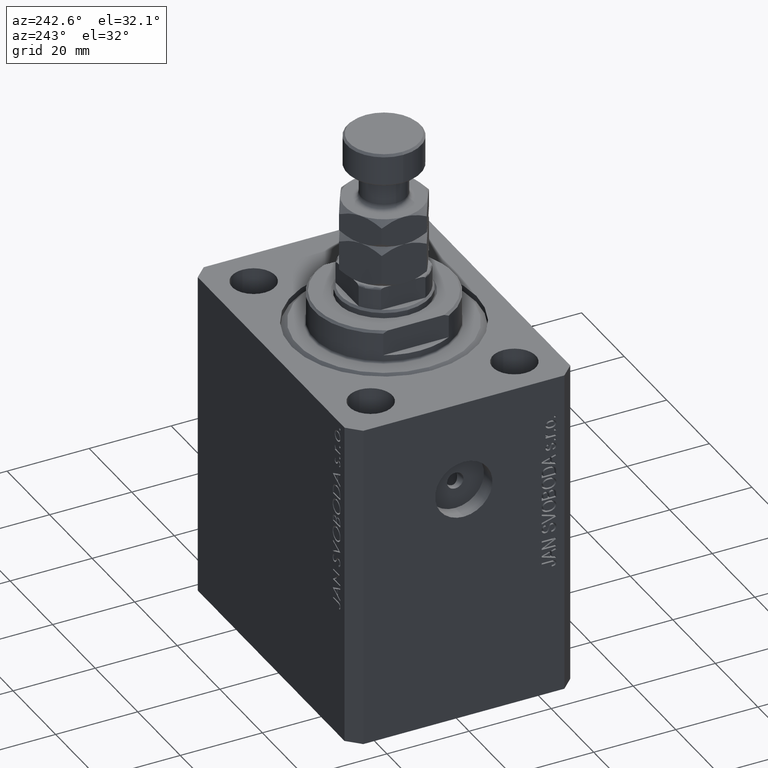
[diagram: clean part render]
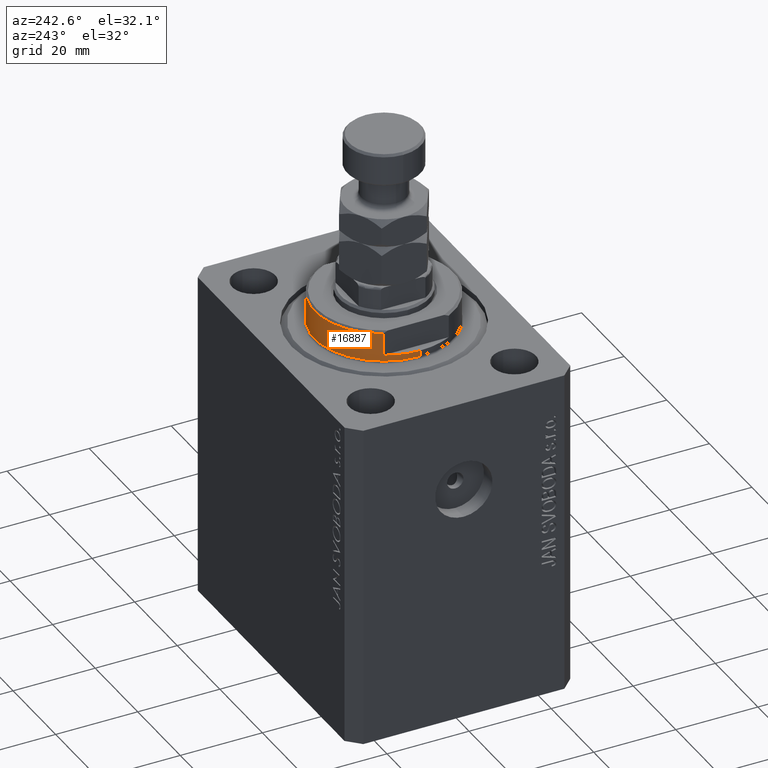
[diagram: same view with one face highlighted and labeled with its STEP entity id]
A machine part, auxiliary view. The second image highlights one B-rep face of the part: STEP entity #16887.
In plain terms, the highlighted cylindrical surface (partial cylindrical patch) has radius 17 mm, axis along (0, 0, -1).
Its self-contained STEP definition (entity closure, byte-faithful):
#897 = VERTEX_POINT ( 'NONE', #15271 ) ;
#2296 = CARTESIAN_POINT ( 'NONE',  ( 15.00000000000000000, 8.000000000000001776, -7.500000000000007105 ) ) ;
#4079 = CARTESIAN_POINT ( 'NONE',  ( -17.00000000000000000, 2.081899558550500280E-15, -2.000000000000000000 ) ) ;
#4300 = EDGE_CURVE ( 'NONE', #5283, #37004, #7949, .T. ) ;
#5283 = VERTEX_POINT ( 'NONE', #2296 ) ;
#7949 = LINE ( 'NONE', #11694, #41467 ) ;
#7968 = ORIENTED_EDGE ( 'NONE', *, *, #4300, .F. ) ;
#8120 = CARTESIAN_POINT ( 'NONE',  ( 17.00000000000000000, 0.000000000000000000, -0.5000000000000004441 ) ) ;
#8830 = DIRECTION ( 'NONE',  ( 0.000000000000000000, 0.000000000000000000, -1.000000000000000000 ) ) ;
#9133 = CARTESIAN_POINT ( 'NONE',  ( -17.00000000000000000, 2.081899558550500280E-15, -0.5000000000000004441 ) ) ;
#9137 = AXIS2_PLACEMENT_3D ( 'NONE', #25714, #15855, #39984 ) ;
#10696 = LINE ( 'NONE', #20540, #45595 ) ;
#11595 = DIRECTION ( 'NONE',  ( 1.000000000000000000, 0.000000000000000000, 0.000000000000000000 ) ) ;
#11694 = CARTESIAN_POINT ( 'NONE',  ( 15.00000000000000000, 8.000000000000001776, -8.000000000000000000 ) ) ;
#12828 = DIRECTION ( 'NONE',  ( -0.000000000000000000, -0.000000000000000000, 1.000000000000000000 ) ) ;
#13608 = CIRCLE ( 'NONE', #39764, 17.00000000000000000 ) ;
#13814 = VERTEX_POINT ( 'NONE', #43929 ) ;
#13815 = EDGE_CURVE ( 'NONE', #45988, #28394, #13608, .T. ) ;
#14014 = LINE ( 'NONE', #14235, #27195 ) ;
#14235 = CARTESIAN_POINT ( 'NONE',  ( -17.00000000000000000, 2.081899558550500280E-15, -8.000000000000000000 ) ) ;
#15264 = AXIS2_PLACEMENT_3D ( 'NONE', #39969, #8830, #25932 ) ;
#15271 = CARTESIAN_POINT ( 'NONE',  ( 17.00000000000000000, 0.000000000000000000, -2.000000000000000000 ) ) ;
#15855 = DIRECTION ( 'NONE',  ( 0.000000000000000000, 0.000000000000000000, 1.000000000000000000 ) ) ;
#16582 = EDGE_CURVE ( 'NONE', #897, #28394, #37423, .T. ) ;
#16683 = EDGE_CURVE ( 'NONE', #45934, #13814, #10696, .T. ) ;
#16887 = ADVANCED_FACE ( 'NONE', ( #18862 ), #18094, .T. ) ;
#18021 = DIRECTION ( 'NONE',  ( -0.000000000000000000, -0.000000000000000000, 1.000000000000000000 ) ) ;
#18094 = CYLINDRICAL_SURFACE ( 'NONE', #28398, 17.00000000000000000 ) ;
#18862 = FACE_OUTER_BOUND ( 'NONE', #32482, .T. ) ;
#20540 = CARTESIAN_POINT ( 'NONE',  ( -15.00000000000000000, 8.000000000000001776, -8.000000000000000000 ) ) ;
#21843 = VERTEX_POINT ( 'NONE', #4079 ) ;
#22392 = VECTOR ( 'NONE', #12828, 1000.000000000000000 ) ;
#22607 = CARTESIAN_POINT ( 'NONE',  ( 0.000000000000000000, 0.000000000000000000, -0.5000000000000004441 ) ) ;
#22909 = CIRCLE ( 'NONE', #23656, 17.00000000000000000 ) ;
#23511 = EDGE_CURVE ( 'NONE', #5283, #45934, #45784, .T. ) ;
#23656 = AXIS2_PLACEMENT_3D ( 'NONE', #34732, #45507, #41526 ) ;
#25612 = CARTESIAN_POINT ( 'NONE',  ( 14.99999999999999645, 8.000000000000003553, -2.000000000000000000 ) ) ;
#25714 = CARTESIAN_POINT ( 'NONE',  ( 0.000000000000000000, 0.000000000000000000, -7.500000000000007105 ) ) ;
#25932 = DIRECTION ( 'NONE',  ( -1.000000000000000000, 0.000000000000000000, 0.000000000000000000 ) ) ;
#27195 = VECTOR ( 'NONE', #32276, 1000.000000000000000 ) ;
#27741 = ORIENTED_EDGE ( 'NONE', *, *, #29411, .T. ) ;
#28394 = VERTEX_POINT ( 'NONE', #8120 ) ;
#28398 = AXIS2_PLACEMENT_3D ( 'NONE', #42938, #39634, #39185 ) ;
#29411 = EDGE_CURVE ( 'NONE', #21843, #45988, #14014, .T. ) ;
#30876 = CARTESIAN_POINT ( 'NONE',  ( 17.00000000000000000, 0.000000000000000000, -8.000000000000000000 ) ) ;
#31237 = ORIENTED_EDGE ( 'NONE', *, *, #32127, .F. ) ;
#32025 = DIRECTION ( 'NONE',  ( -0.000000000000000000, -0.000000000000000000, 1.000000000000000000 ) ) ;
#32127 = EDGE_CURVE ( 'NONE', #21843, #13814, #41460, .T. ) ;
#32276 = DIRECTION ( 'NONE',  ( -0.000000000000000000, -0.000000000000000000, 1.000000000000000000 ) ) ;
#32441 = ORIENTED_EDGE ( 'NONE', *, *, #23511, .T. ) ;
#32482 = EDGE_LOOP ( 'NONE', ( #31237, #27741, #43632, #33917, #42395, #7968, #32441, #32765 ) ) ;
#32765 = ORIENTED_EDGE ( 'NONE', *, *, #16683, .T. ) ;
#33917 = ORIENTED_EDGE ( 'NONE', *, *, #16582, .F. ) ;
#34732 = CARTESIAN_POINT ( 'NONE',  ( 0.000000000000000000, 0.000000000000000000, -2.000000000000000000 ) ) ;
#37004 = VERTEX_POINT ( 'NONE', #25612 ) ;
#37158 = EDGE_CURVE ( 'NONE', #37004, #897, #22909, .T. ) ;
#37423 = LINE ( 'NONE', #30876, #22392 ) ;
#39185 = DIRECTION ( 'NONE',  ( 1.000000000000000000, 0.000000000000000000, 0.000000000000000000 ) ) ;
#39634 = DIRECTION ( 'NONE',  ( -0.000000000000000000, -0.000000000000000000, 1.000000000000000000 ) ) ;
#39695 = DIRECTION ( 'NONE',  ( -0.000000000000000000, -0.000000000000000000, -1.000000000000000000 ) ) ;
#39764 = AXIS2_PLACEMENT_3D ( 'NONE', #22607, #39695, #11595 ) ;
#39969 = CARTESIAN_POINT ( 'NONE',  ( 0.000000000000000000, 0.000000000000000000, -2.000000000000000000 ) ) ;
#39984 = DIRECTION ( 'NONE',  ( -1.000000000000000000, 0.000000000000000000, 0.000000000000000000 ) ) ;
#41460 = CIRCLE ( 'NONE', #15264, 17.00000000000000000 ) ;
#41467 = VECTOR ( 'NONE', #18021, 1000.000000000000000 ) ;
#41526 = DIRECTION ( 'NONE',  ( -1.000000000000000000, 0.000000000000000000, 0.000000000000000000 ) ) ;
#42395 = ORIENTED_EDGE ( 'NONE', *, *, #37158, .F. ) ;
#42938 = CARTESIAN_POINT ( 'NONE',  ( 0.000000000000000000, 0.000000000000000000, -8.000000000000000000 ) ) ;
#43632 = ORIENTED_EDGE ( 'NONE', *, *, #13815, .T. ) ;
#43929 = CARTESIAN_POINT ( 'NONE',  ( -14.99999999999999645, 8.000000000000003553, -2.000000000000000000 ) ) ;
#44738 = CARTESIAN_POINT ( 'NONE',  ( -15.00000000000000000, 8.000000000000001776, -7.500000000000007105 ) ) ;
#45507 = DIRECTION ( 'NONE',  ( 0.000000000000000000, 0.000000000000000000, -1.000000000000000000 ) ) ;
#45595 = VECTOR ( 'NONE', #32025, 1000.000000000000000 ) ;
#45784 = CIRCLE ( 'NONE', #9137, 17.00000000000000000 ) ;
#45934 = VERTEX_POINT ( 'NONE', #44738 ) ;
#45988 = VERTEX_POINT ( 'NONE', #9133 ) ;